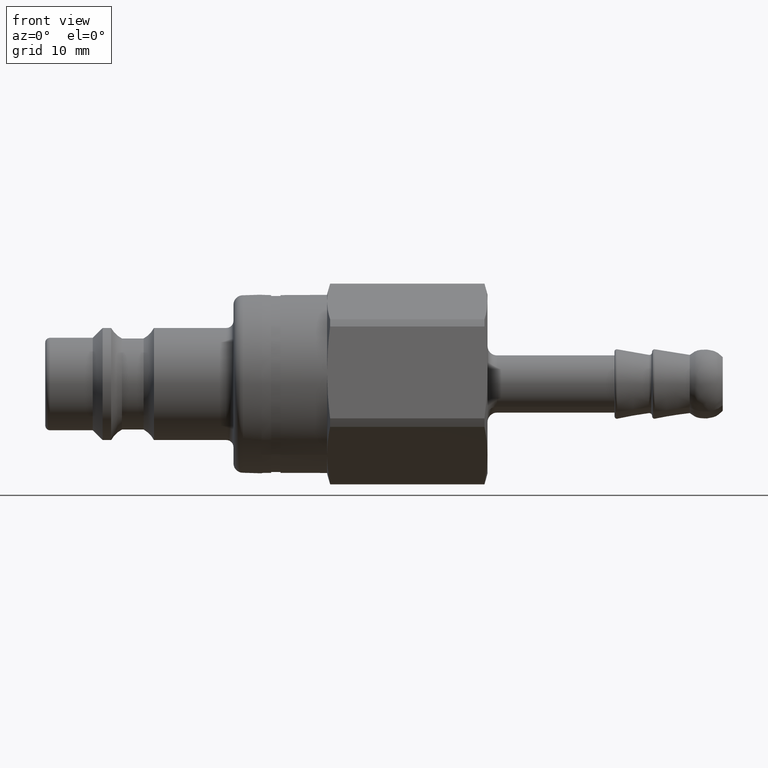
[diagram: clean part render]
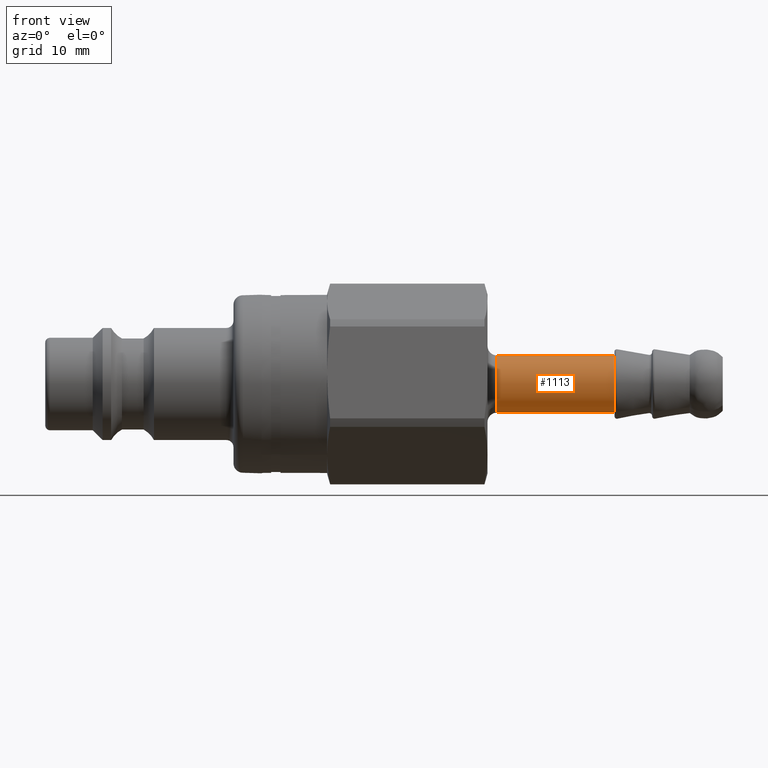
[diagram: same view with one face highlighted and labeled with its STEP entity id]
A machine part, front view. The second image highlights one B-rep face of the part: STEP entity #1113.
In plain terms, the highlighted cylindrical surface (bore or boss wall) has radius 3.05 mm, axis along (-1, 0, 0).
Its self-contained STEP definition (entity closure, byte-faithful):
#1082=CARTESIAN_POINT('',(60.499999999999979,-1.852448300851496,-2.423001298528832));
#1083=VERTEX_POINT('',#1082);
#1084=CARTESIAN_POINT('',(60.499999999999979,0.0,0.0));
#1085=DIRECTION('',(-1.0,0.0,0.0));
#1086=DIRECTION('',(0.0,-0.607360098639835,-0.794426655255355));
#1087=AXIS2_PLACEMENT_3D('',#1084,#1085,#1086);
#1088=CIRCLE('',#1087,3.05);
#1089=EDGE_CURVE('',#1083,#1083,#1088,.T.);
#1094=CARTESIAN_POINT('',(54.249999999999986,0.0,0.0));
#1095=DIRECTION('',(-1.0,0.0,0.0));
#1096=DIRECTION('',(0.0,-0.607360098639835,-0.794426655255355));
#1097=AXIS2_PLACEMENT_3D('',#1094,#1095,#1096);
#1098=CYLINDRICAL_SURFACE('',#1097,3.049999999999999);
#1099=CARTESIAN_POINT('',(47.999999999999986,-1.852448300851495,-2.423001298528831));
#1100=VERTEX_POINT('',#1099);
#1101=CARTESIAN_POINT('',(47.999999999999986,0.0,0.0));
#1102=DIRECTION('',(-1.0,0.0,0.0));
#1103=DIRECTION('',(0.0,-0.607360098639835,-0.794426655255355));
#1104=AXIS2_PLACEMENT_3D('',#1101,#1102,#1103);
#1105=CIRCLE('',#1104,3.049999999999999);
#1106=EDGE_CURVE('',#1100,#1100,#1105,.T.);
#1107=ORIENTED_EDGE('',*,*,#1106,.F.);
#1108=EDGE_LOOP('',(#1107));
#1109=FACE_OUTER_BOUND('',#1108,.T.);
#1110=ORIENTED_EDGE('',*,*,#1089,.T.);
#1111=EDGE_LOOP('',(#1110));
#1112=FACE_BOUND('',#1111,.T.);
#1113=ADVANCED_FACE('',(#1109,#1112),#1098,.T.);